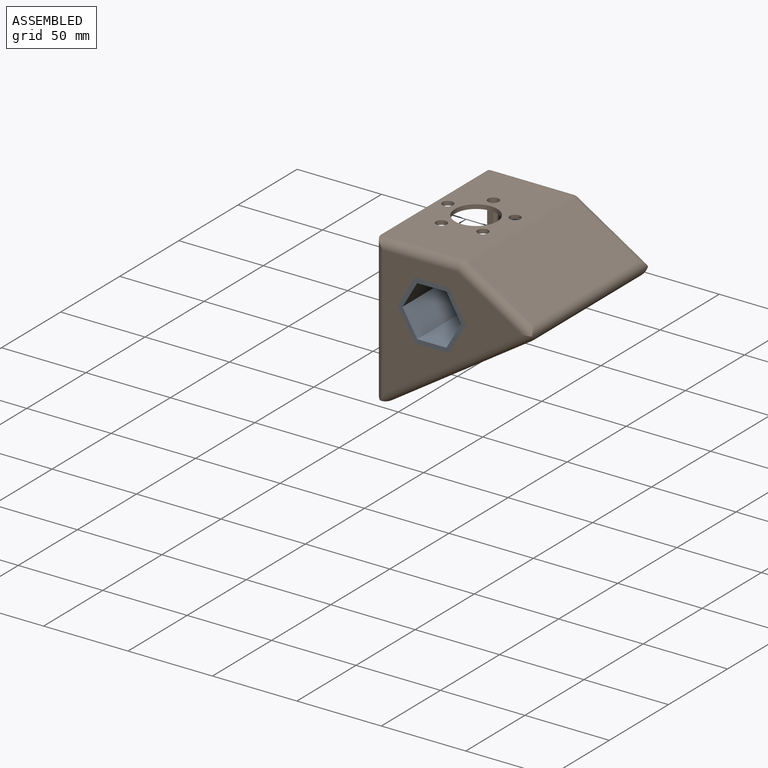
[diagram: assembled view]
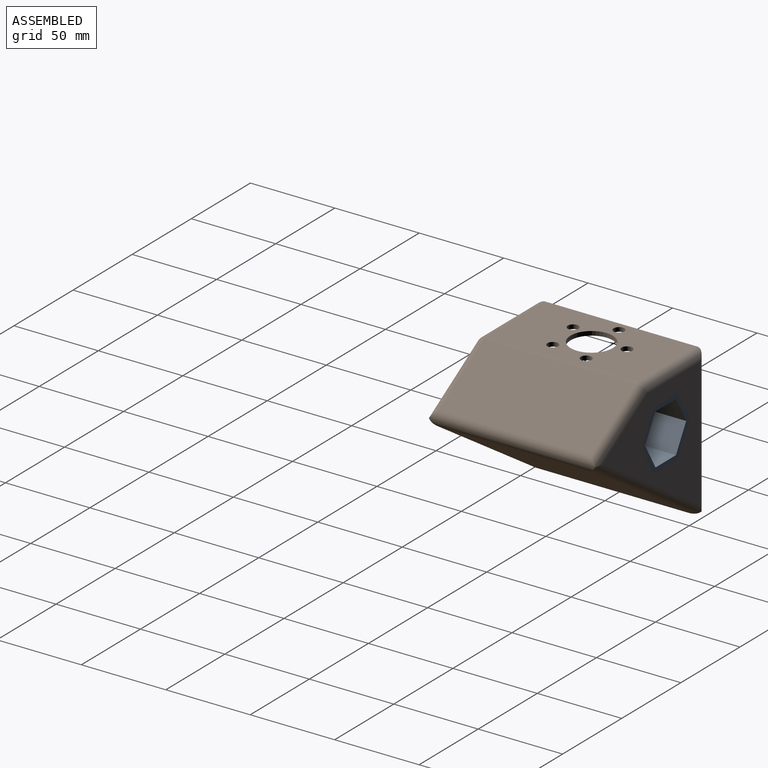
[diagram: assembled view, second angle]
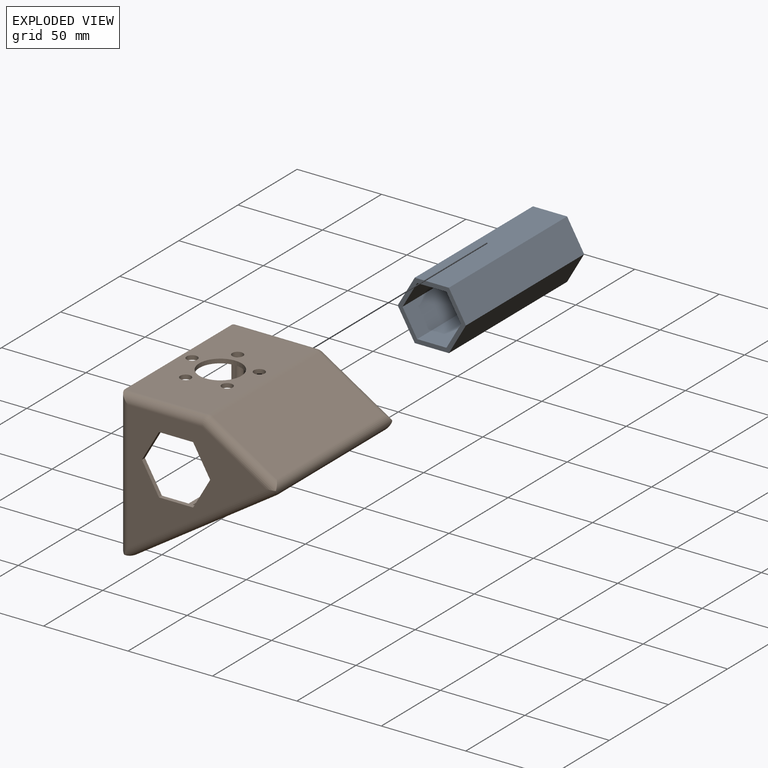
[diagram: exploded view]
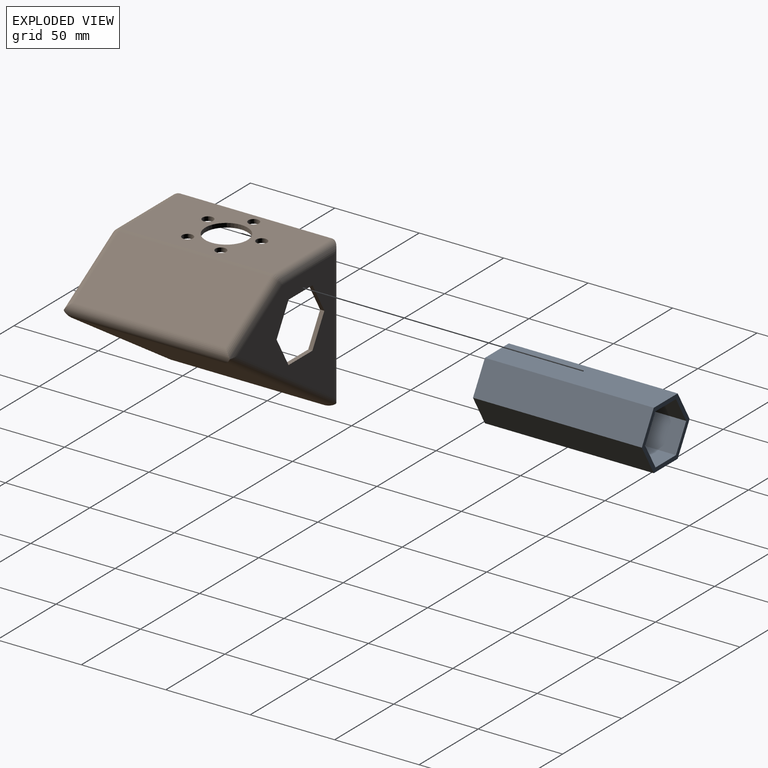
[diagram: exploded view, second angle]
ASSEMBLY  parts=2 mates=4
PART A: 14 faces, bbox 100x40.4x35 mm
  f0: plane 100x17.5mm, normal (0,0.87,0.5), area 2020.7mm2, adj f1,f5,f6,f7
  f1: plane 100x20.21mm, normal (0,0,1), area 2020.7mm2, adj f0,f2,f6,f7
  f2: plane 100x17.5mm, normal (0,-0.87,0.5), area 2020.7mm2, adj f1,f3,f6,f7
  f3: plane 100x17.5mm, normal (0,-0.87,-0.5), area 2020.7mm2, adj f2,f4,f6,f7
  f4: plane 100x20.21mm, normal (0,0,-1), area 2020.7mm2, adj f3,f5,f6,f7
  f5: plane 100x17.5mm, normal (0,0.87,-0.5), area 2020.7mm2, adj f0,f4,f6,f7
  f6: plane 40.41x35mm, normal (1,0,0), area 281.5mm2, adj f0,f1,f2,f3,f4,f5,f8,f9
  f7: plane 40.41x35mm, normal (-1,0,0), area 281.5mm2, adj f0,f1,f2,f3,f4,f5,f8,f9
  f8: plane 100x15mm, normal (0,-0.87,-0.5), area 1732.1mm2, adj f6,f7,f9,f13
  f9: plane 100x17.32mm, normal (0,0,-1), area 1732.1mm2, adj f6,f7,f8,f10
  f10: plane 100x15mm, normal (0,0.87,-0.5), area 1732.1mm2, adj f6,f7,f9,f11
  f11: plane 100x15mm, normal (0,0.87,0.5), area 1732.1mm2, adj f6,f7,f10,f12
  f12: plane 100x17.32mm, normal (0,0,1), area 1732.1mm2, adj f6,f7,f11,f13
  f13: plane 100x15mm, normal (0,-0.87,0.5), area 1732.1mm2, adj f6,f7,f8,f12
PART B: 58 faces, bbox 93.6x100x88.4 mm
  f0: plane 90x2.5mm, normal (-1,0,0), area 225mm2, adj f3,f8,f12,f24
  f1: plane 90x82.32mm, normal (0.54,0,-0.84), area 8834.6mm2, adj f7,f13,f17,f18
  f2: plane 90x38.05mm, normal (0.52,0,0.85), area 4017.2mm2, adj f6,f9,f15,f18
  f3: plane 90x49.27mm, normal (0,0,1), area 3782.3mm2, adj f0,f6,f10,f14,f40,f41,f42,f43
  f4: plane 82.32x76.8mm, normal (0,-1,0), area 2616.8mm2, adj f7,f8,f9,f10,f52,f53,f54,f55
  f5: plane 82.32x76.8mm, normal (0,1,0), area 2616.8mm2, adj f12,f13,f14,f15,f46,f47,f48,f49
  f6: cylinder r=5mm len=90mm, axis (0,1,0), area 247.5mm2, adj f2,f3,f11,f16
  f7: cylinder r=5mm len=92.28mm, axis (-0.84,0,-0.54), area 807.4mm2, adj f1,f4,f8,f9,f17,f18
  f8: cylinder r=5mm len=86.2mm, axis (0,0,1), area 646.9mm2, adj f0,f4,f7,f10,f17,f19
  f9: cylinder r=5mm len=44.27mm, axis (0.85,0,-0.52), area 368.3mm2, adj f2,f4,f7,f11,f18
  f10: cylinder r=5mm len=49.27mm, axis (1,0,0), area 372.7mm2, adj f3,f4,f8,f11
  f11: sphere r=5mm, area 13.8mm2, adj f6,f9,f10
  f12: cylinder r=5mm len=86.2mm, axis (0,0,-1), area 646.9mm2, adj f0,f5,f13,f14,f17,f21
  f13: cylinder r=5mm len=92.28mm, axis (0.84,0,0.54), area 807.4mm2, adj f1,f5,f12,f15,f17,f18
  f14: cylinder r=5mm len=49.27mm, axis (-1,0,0), area 372.7mm2, adj f3,f5,f12,f16
  f15: cylinder r=5mm len=44.27mm, axis (-0.85,0,0.52), area 368.3mm2, adj f2,f5,f13,f16,f18
  f16: sphere r=5mm, area 13.8mm2, adj f6,f14,f15
  f17: cylinder r=5mm len=98.79mm, axis (0,1,0), area 1018.4mm2, adj f1,f7,f8,f12,f13,f20
  f18: cylinder r=5mm len=98.46mm, axis (0,1,0), area 953.6mm2, adj f1,f2,f7,f9,f13,f15
  f19: plane 79.3x2.5mm, normal (0,1,0), area 198.3mm2, adj f8,f20,f24,f29
  f20: plane 90x2.5mm, normal (0,0,1), area 225mm2, adj f17,f19,f21,f38
  f21: plane 79.3x2.5mm, normal (0,-1,0), area 198.3mm2, adj f12,f20,f24,f33
  f22: plane 90x82.32mm, normal (-0.54,0,0.84), area 8834.6mm2, adj f28,f34,f38,f39
  f23: plane 90x38.05mm, normal (-0.52,0,-0.85), area 4017.2mm2, adj f27,f30,f36,f39
  f24: plane 90x49.27mm, normal (0,0,-1), area 3782.3mm2, adj f0,f19,f21,f27,f31,f35,f40,f41
  f25: plane 82.32x76.8mm, normal (0,1,0), area 2616.8mm2, adj f28,f29,f30,f31,f52,f53,f54,f55
  f26: plane 82.32x76.8mm, normal (0,-1,0), area 2616.8mm2, adj f33,f34,f35,f36,f46,f47,f48,f49
  f27: cylinder r=2.5mm len=90mm, axis (0,1,0), area 123.8mm2, adj f23,f24,f32,f37
  f28: cylinder r=2.5mm len=87.3mm, axis (-0.84,0,-0.54), area 394.6mm2, adj f22,f25,f29,f30,f38,f39
  f29: cylinder r=2.5mm len=81.5mm, axis (0,0,1), area 312.5mm2, adj f19,f25,f28,f31,f38
  f30: cylinder r=2.5mm len=41.16mm, axis (0.85,0,-0.52), area 179.7mm2, adj f23,f25,f28,f32,f39
  f31: cylinder r=2.5mm len=46.77mm, axis (1,0,0), area 180.1mm2, adj f24,f25,f29,f32
  f32: sphere r=2.5mm, area 3.4mm2, adj f27,f30,f31
  f33: cylinder r=2.5mm len=81.5mm, axis (0,0,-1), area 312.5mm2, adj f21,f26,f34,f35,f38
  f34: cylinder r=2.5mm len=87.3mm, axis (0.84,0,0.54), area 394.6mm2, adj f22,f26,f33,f36,f38,f39
  f35: cylinder r=2.5mm len=46.77mm, axis (-1,0,0), area 180.1mm2, adj f24,f26,f33,f37
  f36: cylinder r=2.5mm len=41.16mm, axis (-0.85,0,0.52), area 179.7mm2, adj f23,f26,f34,f37,f39
  f37: sphere r=2.5mm, area 3.4mm2, adj f27,f35,f36
  f38: cylinder r=2.5mm len=94.39mm, axis (0,1,0), area 496.1mm2, adj f20,f22,f28,f29,f33,f34
  f39: cylinder r=2.5mm len=94.23mm, axis (0,1,0), area 465.1mm2, adj f22,f23,f28,f30,f34,f36
  f40: cylinder r=12.5mm len=25mm, axis (0,0,1), area 196.3mm2, adj f3,f24
  f41: cylinder r=3.2mm len=6.41mm, axis (0,0,1), area 50.3mm2, adj f3,f24
  f42: cylinder r=3.2mm len=6.41mm, axis (0,0,1), area 50.3mm2, adj f3,f24
  f43: cylinder r=3.2mm len=6.41mm, axis (0,0,1), area 50.3mm2, adj f3,f24
  f44: cylinder r=3.2mm len=6.41mm, axis (0,0,1), area 50.3mm2, adj f3,f24
  f45: cylinder r=3.2mm len=6.41mm, axis (0,0,1), area 50.3mm2, adj f3,f24
  f46: plane 17.5x10.1mm, normal (-0.87,0,0.5), area 50.5mm2, adj f5,f26,f47,f51
  f47: plane 17.5x10.1mm, normal (-0.87,0,-0.5), area 50.5mm2, adj f5,f26,f46,f48
  f48: plane 20.21x2.5mm, normal (0,0,-1), area 50.5mm2, adj f5,f26,f47,f49
  f49: plane 17.5x10.1mm, normal (0.87,0,-0.5), area 50.5mm2, adj f5,f26,f48,f50
  f50: plane 17.5x10.1mm, normal (0.87,0,0.5), area 50.5mm2, adj f5,f26,f49,f51
  f51: plane 20.21x2.5mm, normal (0,0,1), area 50.5mm2, adj f5,f26,f46,f50
  f52: plane 20.21x2.5mm, normal (0,0,1), area 50.5mm2, adj f4,f25,f53,f57
  f53: plane 17.5x10.1mm, normal (0.87,0,0.5), area 50.5mm2, adj f4,f25,f52,f54
  f54: plane 17.5x10.1mm, normal (0.87,0,-0.5), area 50.5mm2, adj f4,f25,f53,f55
  f55: plane 20.21x2.5mm, normal (0,0,-1), area 50.5mm2, adj f4,f25,f54,f56
  f56: plane 17.5x10.1mm, normal (-0.87,0,-0.5), area 50.5mm2, adj f4,f25,f55,f57
  f57: plane 17.5x10.1mm, normal (-0.87,0,0.5), area 50.5mm2, adj f4,f25,f52,f56
PLACE A rot(axis=(-0.65,0.65,-0.38),138.6deg) t=(19.88,-0.05,-21.6)mm
PLACE B t=(82.81,-0.05,-17.59)mm
MATE planar A.f6 <-> B.f4  axis (0,-1,0) through (35.03,-100.05,-30.35)mm
MATE planar A.f4 <-> B.f54  axis (-0.87,0,0.5) through (4.72,-50.05,-12.85)mm
MATE parallel A.f5 <-> B.f53  axis (-0.87,0,-0.5) through (4.72,-50.05,-30.35)mm
MATE planar A.f3 <-> B.f55  axis (0,0,1) through (19.88,-50.05,-4.1)mm
